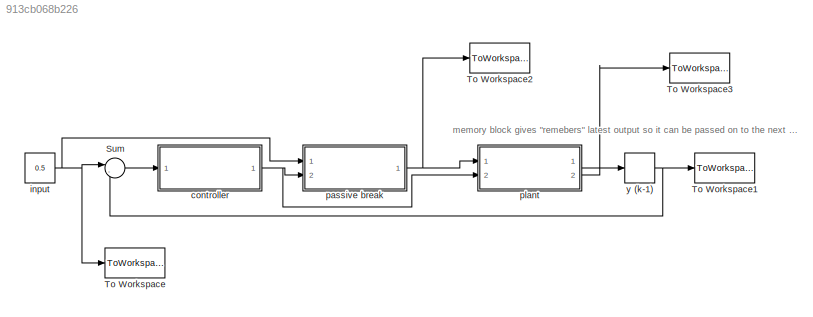
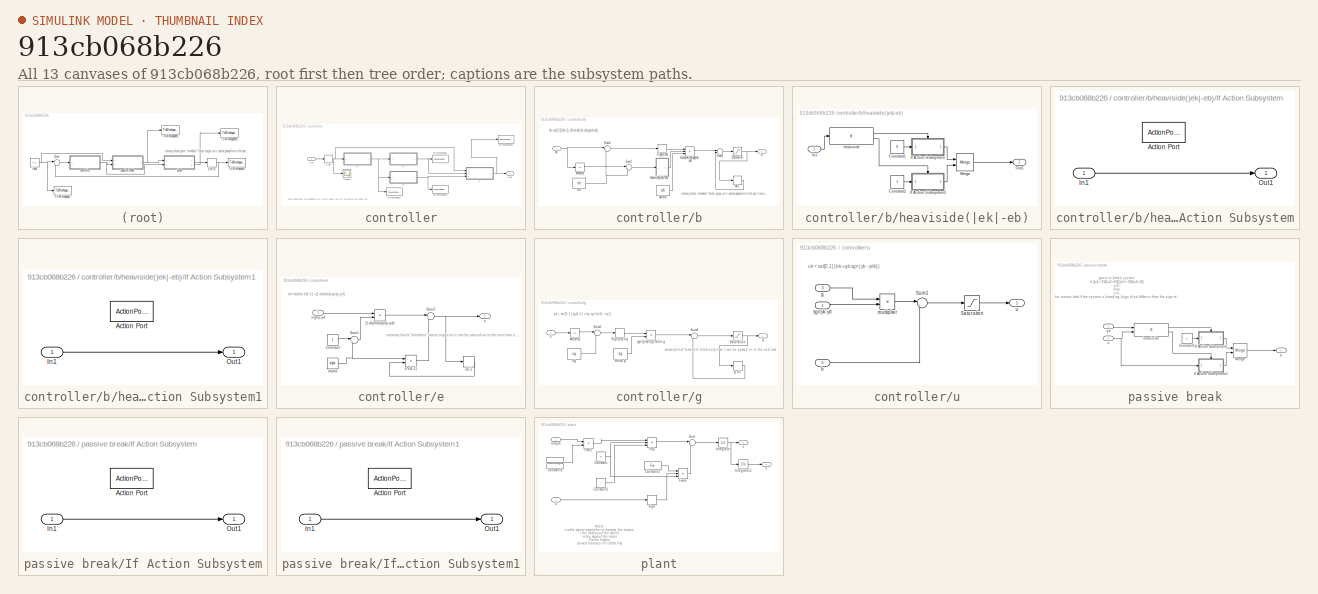
[diagram: thumbnail index - all 13 canvases of the model, root first then tree order]
MODEL slx_913cb068b226
KIND model
CONFIG AbsTol = auto
CONFIG FixedStep = auto
CONFIG MaxStep = auto
CONFIG MinStep = auto
CONFIG RelTol = 1e-3
CONFIG SampleTimeConstraint = Unconstrained
CONFIG Solver = ode45
CONFIG SolverMode = Auto
CONFIG SolverName = ode45
CONFIG StartTime = 0.0
CONFIG StopTime = 10.0
BLOCK [Sum] Sum
  IconShape = round
  InputSameDT = off
  Inputs = |-+
  OutDataTypeStr = Inherit: Inherit via internal rule
  Ports = [2, 1]
  SaturateOnIntegerOverflow = off
BLOCK [ToWorkspace] To Workspace
  FixptAsFi = on
  MaxDataPoints = inf
  Ports = [1]
  SampleTime = -1
  Save2DSignal = 3-D array (concatenate along third dimension)
  SaveFormat = Timeseries
  VariableName = ydesired
BLOCK [ToWorkspace] To Workspace1
  FixptAsFi = on
  MaxDataPoints = inf
  Ports = [1]
  SampleTime = -1
  Save2DSignal = 3-D array (concatenate along third dimension)
  SaveFormat = Timeseries
  VariableName = y
BLOCK [ToWorkspace] To Workspace2
  FixptAsFi = on
  MaxDataPoints = inf
  Ports = [1]
  SampleTime = -1
  Save2DSignal = 3-D array (concatenate along third dimension)
  SaveFormat = Timeseries
  VariableName = pass
BLOCK [ToWorkspace] To Workspace3
  FixptAsFi = on
  MaxDataPoints = inf
  Ports = [1]
  SampleTime = -1
  Save2DSignal = 3-D array (concatenate along third dimension)
  SaveFormat = Timeseries
  VariableName = ys
BLOCK [SubSystem] controller
  Ports = [1, 1]
  RequestExecContextInheritance = off
BLOCK [Scope] controller/Scope
  Floating = off
  NumInputPorts = 1
  Ports = [1]
BLOCK [Signum] controller/Sign
BLOCK [ToWorkspace] controller/To Workspace
  FixptAsFi = on
  MaxDataPoints = inf
  Ports = [1]
  SampleTime = -1
  Save2DSignal = 3-D array (concatenate along third dimension)
  SaveFormat = Timeseries
  VariableName = eout
BLOCK [ToWorkspace] controller/To Workspace1
  FixptAsFi = on
  MaxDataPoints = inf
  Ports = [1]
  SampleTime = -1
  Save2DSignal = 3-D array (concatenate along third dimension)
  SaveFormat = Timeseries
  VariableName = bout
BLOCK [ToWorkspace] controller/To Workspace2
  FixptAsFi = on
  MaxDataPoints = inf
  Ports = [1]
  SampleTime = -1
  Save2DSignal = 3-D array (concatenate along third dimension)
  SaveFormat = Timeseries
  VariableName = gout
BLOCK [ToWorkspace] controller/To Workspace3
  FixptAsFi = on
  MaxDataPoints = inf
  Ports = [1]
  SampleTime = -1
  Save2DSignal = 3-D array (concatenate along third dimension)
  SaveFormat = Timeseries
  VariableName = u
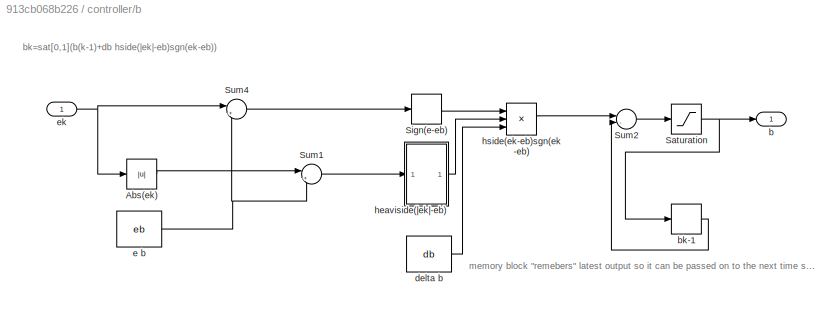
BLOCK [SubSystem] controller/b
  Ports = [1, 1]
  RequestExecContextInheritance = off
BLOCK [Abs] controller/b/Abs(ek)
  SaturateOnIntegerOverflow = off
BLOCK [Saturate] controller/b/Saturation
  InputPortMap = u0
  LowerLimit = -1
  Ports = [1, 1]
  UpperLimit = 1
BLOCK [Signum] controller/b/Sign(e-eb)
  ZeroCross = off
BLOCK [Sum] controller/b/Sum1
  IconShape = round
  InputSameDT = off
  Inputs = |+-
  OutDataTypeStr = Inherit: Inherit via internal rule
  Ports = [2, 1]
  SaturateOnIntegerOverflow = off
BLOCK [Sum] controller/b/Sum2
  IconShape = round
  InputSameDT = off
  Inputs = |-+
  OutDataTypeStr = Inherit: Inherit via internal rule
  Ports = [2, 1]
  SaturateOnIntegerOverflow = off
BLOCK [Sum] controller/b/Sum4
  IconShape = round
  InputSameDT = off
  Inputs = |+-
  OutDataTypeStr = Inherit: Inherit via internal rule
  Ports = [2, 1]
  SaturateOnIntegerOverflow = off
BLOCK [Outport] controller/b/b
  IconDisplay = Port number
BLOCK [Memory] controller/b/bk-1
BLOCK [Constant] controller/b/delta b
  Value = db
BLOCK [Constant] controller/b/e b
  Value = eb
BLOCK [Inport] controller/b/ek
  IconDisplay = Port number
BLOCK [SubSystem] controller/b/heaviside(|ek|-eb)
  Ports = [1, 1]
  RequestExecContextInheritance = off
BLOCK [Constant] controller/b/heaviside(|ek|-eb)/Constant1
  Value = 0
BLOCK [Constant] controller/b/heaviside(|ek|-eb)/Constant2
BLOCK [SubSystem] controller/b/heaviside(|ek|-eb)/If Action Subsystem
  Ports = [1, 1, 0, 0, 0, 0, 0, 1]
  RequestExecContextInheritance = off
  TreatAsAtomicUnit = on
BLOCK [ActionPort] controller/b/heaviside(|ek|-eb)/If Action Subsystem/Action Port
  ActionType = then
BLOCK [Inport] controller/b/heaviside(|ek|-eb)/If Action Subsystem/In1
  IconDisplay = Port number
BLOCK [Outport] controller/b/heaviside(|ek|-eb)/If Action Subsystem/Out1
  IconDisplay = Port number
BLOCK [SubSystem] controller/b/heaviside(|ek|-eb)/If Action Subsystem1
  Ports = [1, 1, 0, 0, 0, 0, 0, 1]
  RequestExecContextInheritance = off
  TreatAsAtomicUnit = on
BLOCK [ActionPort] controller/b/heaviside(|ek|-eb)/If Action Subsystem1/Action Port
  ActionType = else
BLOCK [Inport] controller/b/heaviside(|ek|-eb)/If Action Subsystem1/In1
  IconDisplay = Port number
BLOCK [Outport] controller/b/heaviside(|ek|-eb)/If Action Subsystem1/Out1
  IconDisplay = Port number
BLOCK [Inport] controller/b/heaviside(|ek|-eb)/In1
  IconDisplay = Port number
BLOCK [Merge] controller/b/heaviside(|ek|-eb)/Merge
  Ports = [2, 1]
BLOCK [Outport] controller/b/heaviside(|ek|-eb)/Out1
  IconDisplay = Port number
BLOCK [If] controller/b/heaviside(|ek|-eb)/heaviside
  IfExpression = u1 < 0
  Ports = [1, 2]
BLOCK [Product] controller/b/hside(ek-eb)sgn(ek-eb)
  InputSameDT = off
  Inputs = 3
  OutDataTypeStr = Inherit: Inherit via internal rule
  Ports = [3, 1]
  RndMeth = Floor
  SaturateOnIntegerOverflow = off
BLOCK [SubSystem] controller/e
  Ports = [1, 1]
  RequestExecContextInheritance = off
BLOCK [Product] controller/e/(1-alpha)sgn(y-yd)
  InputSameDT = off
  OutDataTypeStr = Inherit: Inherit via internal rule
  Ports = [2, 1]
  RndMeth = Floor
  SaturateOnIntegerOverflow = off
BLOCK [Constant] controller/e/Constant
BLOCK [Sum] controller/e/Sum1
  IconShape = round
  InputSameDT = off
  Inputs = |+-
  OutDataTypeStr = Inherit: Inherit via internal rule
  Ports = [2, 1]
  SaturateOnIntegerOverflow = off
BLOCK [Sum] controller/e/Sum2
  IconShape = round
  InputSameDT = off
  Inputs = |++
  OutDataTypeStr = Inherit: Inherit via internal rule
  Ports = [2, 1]
  SaturateOnIntegerOverflow = off
BLOCK [Product] controller/e/a*e(k-1)
  InputSameDT = off
  OutDataTypeStr = Inherit: Inherit via internal rule
  Ports = [2, 1]
  RndMeth = Floor
  SaturateOnIntegerOverflow = off
BLOCK [Constant] controller/e/alpha
  Value = alpha
BLOCK [Outport] controller/e/e
  IconDisplay = Port number
BLOCK [Memory] controller/e/ek-1
BLOCK [Inport] controller/e/signy-yd
  IconDisplay = Port number
BLOCK [SubSystem] controller/g
  Ports = [1, 1]
  RequestExecContextInheritance = off
BLOCK [Abs] controller/g/Abs(ek)
  SaturateOnIntegerOverflow = off
BLOCK [Saturate] controller/g/Saturation
  InputPortMap = u0
  LowerLimit = -1
  Ports = [1, 1]
  UpperLimit = 1
BLOCK [Signum] controller/g/Sign|ek|-eg
BLOCK [Sum] controller/g/Sum2
  IconShape = round
  InputSameDT = off
  Inputs = |+-
  OutDataTypeStr = Inherit: Inherit via internal rule
  Ports = [2, 1]
  SaturateOnIntegerOverflow = off
BLOCK [Sum] controller/g/Sum4
  IconShape = round
  InputSameDT = off
  Inputs = |-+
  OutDataTypeStr = Inherit: Inherit via internal rule
  Ports = [2, 1]
  SaturateOnIntegerOverflow = off
BLOCK [Constant] controller/g/delta g
  Value = dg
BLOCK [Inport] controller/g/e
  IconDisplay = Port number
BLOCK [Constant] controller/g/eg
  Value = eg
BLOCK [Outport] controller/g/g
  IconDisplay = Port number
BLOCK [Memory] controller/g/g k-1
BLOCK [Product] controller/g/sgn(|ek|-eg)*dela g
  InputSameDT = off
  OutDataTypeStr = Inherit: Inherit via internal rule
  Ports = [2, 1]
  RndMeth = Floor
  SaturateOnIntegerOverflow = off
BLOCK [SubSystem] controller/u
  Ports = [3, 1]
  RequestExecContextInheritance = off
BLOCK [Outport] controller/u  out
  IconDisplay = Port number
BLOCK [Saturate] controller/u/Saturation
  InputPortMap = u0
  LowerLimit = -1
  Ports = [1, 1]
  UpperLimit = 1
BLOCK [Sum] controller/u/Sum1
  IconShape = round
  InputSameDT = off
  Inputs = |++
  OutDataTypeStr = Inherit: Inherit via internal rule
  Ports = [2, 1]
  SaturateOnIntegerOverflow = off
BLOCK [Inport] controller/u/b
  IconDisplay = Port number
  Port = 2
BLOCK [Inport] controller/u/g
  IconDisplay = Port number
  Port = 3
BLOCK [Product] controller/u/multiplier 
  InputSameDT = off
  OutDataTypeStr = Inherit: Inherit via internal rule
  Ports = [2, 1]
  RndMeth = Floor
  SaturateOnIntegerOverflow = off
BLOCK [Inport] controller/u/sgnyk-yd
  IconDisplay = Port number
BLOCK [Outport] controller/u/u
  IconDisplay = Port number
BLOCK [Inport] controller/y-yd
  IconDisplay = Port number
BLOCK [Constant] input
  Value = 0.5
BLOCK [SubSystem] passive break
  Ports = [2, 1]
  RequestExecContextInheritance = off
BLOCK [Constant] passive break/Constant1
  Value = 0
BLOCK [SubSystem] passive break/If Action Subsystem
  Ports = [1, 1, 0, 0, 0, 0, 0, 1]
  RequestExecContextInheritance = off
  TreatAsAtomicUnit = on
BLOCK [ActionPort] passive break/If Action Subsystem/Action Port
  ActionType = then
BLOCK [Inport] passive break/If Action Subsystem/In1
  IconDisplay = Port number
BLOCK [Outport] passive break/If Action Subsystem/Out1
  IconDisplay = Port number
BLOCK [SubSystem] passive break/If Action Subsystem1
  Ports = [1, 1, 0, 0, 0, 0, 0, 1]
  RequestExecContextInheritance = off
  TreatAsAtomicUnit = on
BLOCK [ActionPort] passive break/If Action Subsystem1/Action Port
  ActionType = else
BLOCK [Inport] passive break/If Action Subsystem1/In1
  IconDisplay = Port number
BLOCK [Outport] passive break/If Action Subsystem1/Out1
  IconDisplay = Port number
BLOCK [Merge] passive break/Merge
  Ports = [2, 1]
BLOCK [If] passive break/heaviside
  IfExpression = ((u1> 0)&(u2<0))|((u1< 0)&(u2>0))
  NumInputs = 2
  Ports = [2, 2]
BLOCK [Inport] passive break/u
  IconDisplay = Port number
  Port = 2
BLOCK [Outport] passive break/y 
  IconDisplay = Port number
BLOCK [Inport] passive break/yd
  IconDisplay = Port number
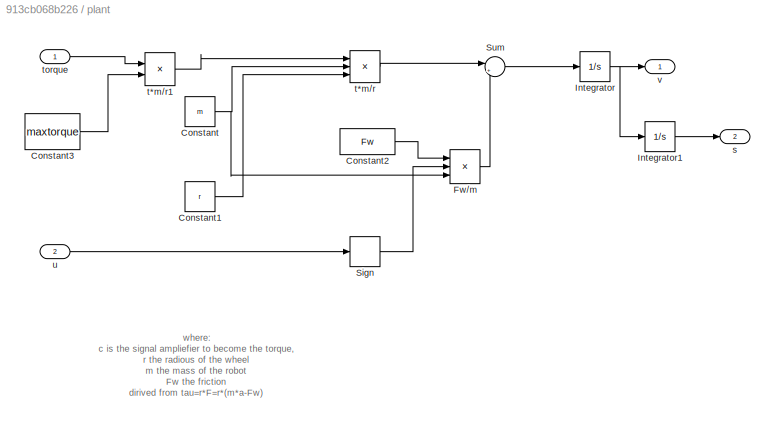
BLOCK [SubSystem] plant
  Ports = [2, 2]
  RequestExecContextInheritance = off
BLOCK [Constant] plant/Constant
  Value = m
BLOCK [Constant] plant/Constant1
  Value = r
BLOCK [Constant] plant/Constant2
  Value = Fw
BLOCK [Constant] plant/Constant3
  Value = maxtorque
BLOCK [Product] plant/Fw//m
  InputSameDT = off
  Inputs = **/
  OutDataTypeStr = Inherit: Inherit via internal rule
  Ports = [3, 1]
  RndMeth = Floor
  SaturateOnIntegerOverflow = off
BLOCK [Integrator] plant/Integrator
  Ports = [1, 1]
BLOCK [Integrator] plant/Integrator1
  Ports = [1, 1]
BLOCK [Signum] plant/Sign
  ZeroCross = off
BLOCK [Sum] plant/Sum
  IconShape = round
  InputSameDT = off
  Inputs = |+-
  OutDataTypeStr = Inherit: Inherit via internal rule
  Ports = [2, 1]
  SaturateOnIntegerOverflow = off
BLOCK [Outport] plant/s
  IconDisplay = Port number
  Port = 2
BLOCK [Product] plant/t*m//r
  InputSameDT = off
  Inputs = **/
  OutDataTypeStr = Inherit: Inherit via internal rule
  Ports = [3, 1]
  RndMeth = Floor
  SaturateOnIntegerOverflow = off
BLOCK [Product] plant/t*m//r1
  InputSameDT = off
  Inputs = **
  OutDataTypeStr = Inherit: Inherit via internal rule
  Ports = [2, 1]
  RndMeth = Floor
  SaturateOnIntegerOverflow = off
BLOCK [Inport] plant/torque
  IconDisplay = Port number
BLOCK [Inport] plant/u
  IconDisplay = Port number
  Port = 2
BLOCK [Outport] plant/v
  IconDisplay = Port number
BLOCK [Memory] y (k-1)
ANNOTATION (root): memory block gives "remebers" latest output so it can be passed on to the next time step
ANNOTATION controller: each subsystem corrosponds to a line of code, the left variables are input the ones on the right are output
ANNOTATION controller/b: bk=sat[0,1](b(k-1)+db hside(|ek|-eb)sgn(ek-eb))
ANNOTATION controller/b: memory block "remebers" latest output so it can be passed on to the next time step
ANNOTATION controller/e: ek=alpha e(k-1) +(1-alpha)sgn(y-yd)
ANNOTATION controller/e: memory block "remebers" latest output so it can be passed on to the next time step
ANNOTATION controller/g: gk = sat[0,1] (g(k−1) +dg sgn(|ek|− eg))
ANNOTATION controller/g: memory block "remebers" latest output so it can be passed on to the next time step
ANNOTATION controller/u: uk = sat[0,1] (bk +gk sgn(yk −ydk))
ANNOTATION passive break: passive break system if ((u1> 0)&(u2 0)) y=0 else y=u this means that if the system is breaking (sign of yd differce from the sign of u) the output will be zero and friction will make sure it slows down instead of giving torque in the other direction
ANNOTATION plant: where: c is the signal ampliefier to become the torque, r the radious of the wheel m the mass of the robot Fw the friction dirived from tau=r*F=r*(m*a-Fw) witch can be rewritten as: a=(t/r -Fw)/m finally this makes: v=d/dt(t*m/r -Fw/m)
LINE Sum:1 -> controller:1
NET controller/Sign:1 -> controller/Scope:1, controller/e:1, controller/u:1
LINE controller/b/Abs(ek):1 -> controller/b/Sum1:1
NET controller/b/Saturation:1 -> controller/b/b:1, controller/b/bk-1:1
LINE controller/b/Sign(e-eb):1 -> controller/b/hside(ek-eb)sgn(ek-eb):1
LINE controller/b/Sum1:1 -> controller/b/heaviside(|ek|-eb):1
LINE controller/b/Sum2:1 -> controller/b/Saturation:1
LINE controller/b/Sum4:1 -> controller/b/Sign(e-eb):1
LINE controller/b/bk-1:1 -> controller/b/Sum2:2
LINE controller/b/delta b:1 -> controller/b/hside(ek-eb)sgn(ek-eb):3
NET controller/b/e b:1 -> controller/b/Sum1:2, controller/b/Sum4:2
NET controller/b/ek:1 -> controller/b/Abs(ek):1, controller/b/Sum4:1
LINE controller/b/heaviside(|ek|-eb)/Constant1:1 -> controller/b/heaviside(|ek|-eb)/If Action Subsystem:1
LINE controller/b/heaviside(|ek|-eb)/Constant2:1 -> controller/b/heaviside(|ek|-eb)/If Action Subsystem1:1
LINE controller/b/heaviside(|ek|-eb)/If Action Subsystem/In1:1 -> controller/b/heaviside(|ek|-eb)/If Action Subsystem/Out1:1
LINE controller/b/heaviside(|ek|-eb)/If Action Subsystem1/In1:1 -> controller/b/heaviside(|ek|-eb)/If Action Subsystem1/Out1:1
LINE controller/b/heaviside(|ek|-eb)/If Action Subsystem1:1 -> controller/b/heaviside(|ek|-eb)/Merge:2
LINE controller/b/heaviside(|ek|-eb)/If Action Subsystem:1 -> controller/b/heaviside(|ek|-eb)/Merge:1
LINE controller/b/heaviside(|ek|-eb)/In1:1 -> controller/b/heaviside(|ek|-eb)/heaviside:1
LINE controller/b/heaviside(|ek|-eb)/Merge:1 -> controller/b/heaviside(|ek|-eb)/Out1:1
LINE controller/b/heaviside(|ek|-eb)/heaviside:1 -> controller/b/heaviside(|ek|-eb)/If Action Subsystem:ifaction
LINE controller/b/heaviside(|ek|-eb)/heaviside:2 -> controller/b/heaviside(|ek|-eb)/If Action Subsystem1:ifaction
LINE controller/b/heaviside(|ek|-eb):1 -> controller/b/hside(ek-eb)sgn(ek-eb):2
LINE controller/b/hside(ek-eb)sgn(ek-eb):1 -> controller/b/Sum2:1
NET controller/b:1 -> controller/To Workspace1:1, controller/u:2
LINE controller/e/(1-alpha)sgn(y-yd):1 -> controller/e/Sum2:1
LINE controller/e/Constant:1 -> controller/e/Sum1:1
LINE controller/e/Sum1:1 -> controller/e/(1-alpha)sgn(y-yd):2
NET controller/e/Sum2:1 -> controller/e/e:1, controller/e/ek-1:1
LINE controller/e/a*e(k-1):1 -> controller/e/Sum2:2
NET controller/e/alpha:1 -> controller/e/Sum1:2, controller/e/a*e(k-1):1
LINE controller/e/ek-1:1 -> controller/e/a*e(k-1):2
LINE controller/e/signy-yd:1 -> controller/e/(1-alpha)sgn(y-yd):1
NET controller/e:1 -> controller/To Workspace:1, controller/b:1, controller/g:1
LINE controller/g/Abs(ek):1 -> controller/g/Sum2:1
NET controller/g/Saturation:1 -> controller/g/g k-1:1, controller/g/g:1
LINE controller/g/Sign|ek|-eg:1 -> controller/g/sgn(|ek|-eg)*dela g:1
LINE controller/g/Sum2:1 -> controller/g/Sign|ek|-eg:1
LINE controller/g/Sum4:1 -> controller/g/Saturation:1
LINE controller/g/delta g:1 -> controller/g/sgn(|ek|-eg)*dela g:2
LINE controller/g/e:1 -> controller/g/Abs(ek):1
LINE controller/g/eg:1 -> controller/g/Sum2:2
LINE controller/g/g k-1:1 -> controller/g/Sum4:2
LINE controller/g/sgn(|ek|-eg)*dela g:1 -> controller/g/Sum4:1
NET controller/g:1 -> controller/To Workspace2:1, controller/u:3
LINE controller/u/Saturation:1 -> controller/u/u:1
LINE controller/u/Sum1:1 -> controller/u/Saturation:1
LINE controller/u/b:1 -> controller/u/Sum1:2
LINE controller/u/g:1 -> controller/u/multiplier :1
LINE controller/u/multiplier :1 -> controller/u/Sum1:1
LINE controller/u/sgnyk-yd:1 -> controller/u/multiplier :2
NET controller/u:1 -> controller/To Workspace3:1, controller/u  out:1
LINE controller/y-yd:1 -> controller/Sign:1
NET controller:1 -> passive break:2, plant:2
NET input:1 -> Sum:1, To Workspace:1, passive break:1
LINE passive break/Constant1:1 -> passive break/If Action Subsystem:1
LINE passive break/If Action Subsystem/In1:1 -> passive break/If Action Subsystem/Out1:1
LINE passive break/If Action Subsystem1/In1:1 -> passive break/If Action Subsystem1/Out1:1
LINE passive break/If Action Subsystem1:1 -> passive break/Merge:2
LINE passive break/If Action Subsystem:1 -> passive break/Merge:1
LINE passive break/Merge:1 -> passive break/y :1
LINE passive break/heaviside:1 -> passive break/If Action Subsystem:ifaction
LINE passive break/heaviside:2 -> passive break/If Action Subsystem1:ifaction
NET passive break/u:1 -> passive break/If Action Subsystem1:1, passive break/heaviside:2
LINE passive break/yd:1 -> passive break/heaviside:1
NET passive break:1 -> To Workspace2:1, plant:1
LINE plant/Constant1:1 -> plant/t*m//r:3
LINE plant/Constant2:1 -> plant/Fw//m:1
LINE plant/Constant3:1 -> plant/t*m//r1:2
NET plant/Constant:1 -> plant/Fw//m:3, plant/t*m//r:2
LINE plant/Fw//m:1 -> plant/Sum:2
LINE plant/Integrator1:1 -> plant/s:1
NET plant/Integrator:1 -> plant/Integrator1:1, plant/v:1
LINE plant/Sign:1 -> plant/Fw//m:2
LINE plant/Sum:1 -> plant/Integrator:1
LINE plant/t*m//r1:1 -> plant/t*m//r:1
LINE plant/t*m//r:1 -> plant/Sum:1
LINE plant/torque:1 -> plant/t*m//r1:1
LINE plant/u:1 -> plant/Sign:1
LINE plant:1 -> y (k-1):1
LINE plant:2 -> To Workspace3:1
NET y (k-1):1 -> Sum:2, To Workspace1:1
note: NET lines group one-source signal fan-out (src -> all destinations, sorted); 1:1 wires keep LINE
